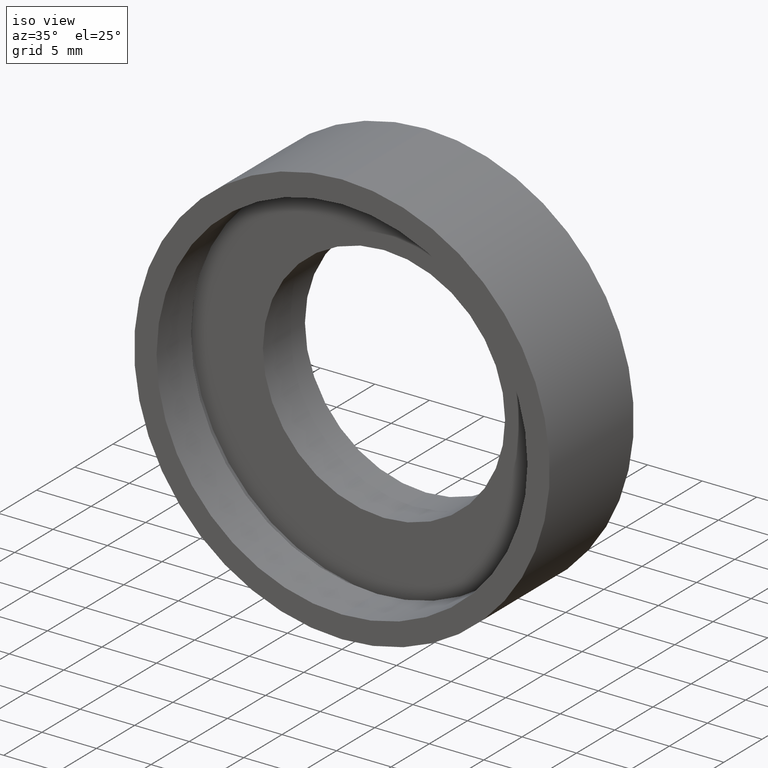
[diagram: clean part render]
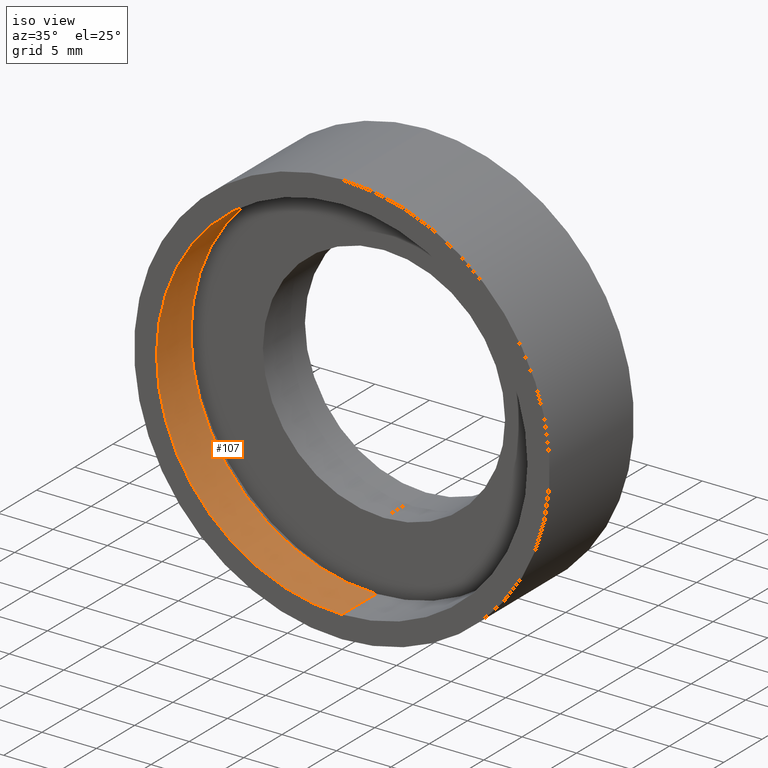
[diagram: same view with one face highlighted and labeled with its STEP entity id]
A machine part, iso view. The second image highlights one B-rep face of the part: STEP entity #107.
In plain terms, the highlighted cylindrical surface (partial cylindrical patch) has radius 17 mm, axis along (-0, 1, -0).
Its self-contained STEP definition (entity closure, byte-faithful):
#6 = CARTESIAN_POINT ( 'NONE',  ( 2.081899558550501500E-015, 0.0000000000000000000, -17.00000000000000700 ) ) ;
#25 = CARTESIAN_POINT ( 'NONE',  ( 0.0000000000000000000, 60.02082041425541100, 17.00000000000000700 ) ) ;
#29 = VERTEX_POINT ( 'NONE', #127 ) ;
#30 = EDGE_CURVE ( 'NONE', #39, #279, #84, .T. ) ;
#39 = VERTEX_POINT ( 'NONE', #6 ) ;
#76 = VECTOR ( 'NONE', #183, 1000.000000000000000 ) ;
#84 = LINE ( 'NONE', #221, #76 ) ;
#104 = CARTESIAN_POINT ( 'NONE',  ( 2.081899558550501500E-015, 4.499999999999997300, -17.00000000000000700 ) ) ;
#106 = ORIENTED_EDGE ( 'NONE', *, *, #348, .T. ) ;
#107 = ADVANCED_FACE ( 'NONE', ( #115 ), #220, .F. ) ;
#111 = CIRCLE ( 'NONE', #258, 17.00000000000000700 ) ;
#114 = DIRECTION ( 'NONE',  ( -0.0000000000000000000, 1.000000000000000000, -0.0000000000000000000 ) ) ;
#115 = FACE_OUTER_BOUND ( 'NONE', #172, .T. ) ;
#127 = CARTESIAN_POINT ( 'NONE',  ( 0.0000000000000000000, 0.0000000000000000000, 17.00000000000000700 ) ) ;
#136 = CIRCLE ( 'NONE', #341, 17.00000000000000700 ) ;
#152 = DIRECTION ( 'NONE',  ( -0.0000000000000000000, 1.000000000000000000, -0.0000000000000000000 ) ) ;
#162 = ORIENTED_EDGE ( 'NONE', *, *, #324, .F. ) ;
#165 = EDGE_CURVE ( 'NONE', #39, #29, #136, .T. ) ;
#170 = ORIENTED_EDGE ( 'NONE', *, *, #30, .T. ) ;
#172 = EDGE_LOOP ( 'NONE', ( #381, #170, #106, #162 ) ) ;
#183 = DIRECTION ( 'NONE',  ( -0.0000000000000000000, 1.000000000000000000, -0.0000000000000000000 ) ) ;
#203 = DIRECTION ( 'NONE',  ( 0.0000000000000000000, 0.0000000000000000000, 1.000000000000000000 ) ) ;
#206 = VECTOR ( 'NONE', #289, 1000.000000000000000 ) ;
#214 = CARTESIAN_POINT ( 'NONE',  ( 0.0000000000000000000, 4.499999999999997300, 0.0000000000000000000 ) ) ;
#220 = CYLINDRICAL_SURFACE ( 'NONE', #313, 17.00000000000000700 ) ;
#221 = CARTESIAN_POINT ( 'NONE',  ( 2.081899558550501500E-015, 60.02082041425541100, -17.00000000000000700 ) ) ;
#233 = VERTEX_POINT ( 'NONE', #269 ) ;
#235 = DIRECTION ( 'NONE',  ( 0.0000000000000000000, 0.0000000000000000000, 1.000000000000000000 ) ) ;
#240 = DIRECTION ( 'NONE',  ( 0.0000000000000000000, 0.0000000000000000000, 1.000000000000000000 ) ) ;
#258 = AXIS2_PLACEMENT_3D ( 'NONE', #214, #114, #203 ) ;
#269 = CARTESIAN_POINT ( 'NONE',  ( 0.0000000000000000000, 4.499999999999997300, 17.00000000000000700 ) ) ;
#279 = VERTEX_POINT ( 'NONE', #104 ) ;
#289 = DIRECTION ( 'NONE',  ( -0.0000000000000000000, 1.000000000000000000, -0.0000000000000000000 ) ) ;
#313 = AXIS2_PLACEMENT_3D ( 'NONE', #403, #433, #240 ) ;
#324 = EDGE_CURVE ( 'NONE', #29, #233, #418, .T. ) ;
#341 = AXIS2_PLACEMENT_3D ( 'NONE', #414, #152, #235 ) ;
#348 = EDGE_CURVE ( 'NONE', #279, #233, #111, .T. ) ;
#381 = ORIENTED_EDGE ( 'NONE', *, *, #165, .F. ) ;
#403 = CARTESIAN_POINT ( 'NONE',  ( 0.0000000000000000000, 60.02082041425541100, 0.0000000000000000000 ) ) ;
#414 = CARTESIAN_POINT ( 'NONE',  ( 0.0000000000000000000, 0.0000000000000000000, 0.0000000000000000000 ) ) ;
#418 = LINE ( 'NONE', #25, #206 ) ;
#433 = DIRECTION ( 'NONE',  ( -0.0000000000000000000, 1.000000000000000000, -0.0000000000000000000 ) ) ;